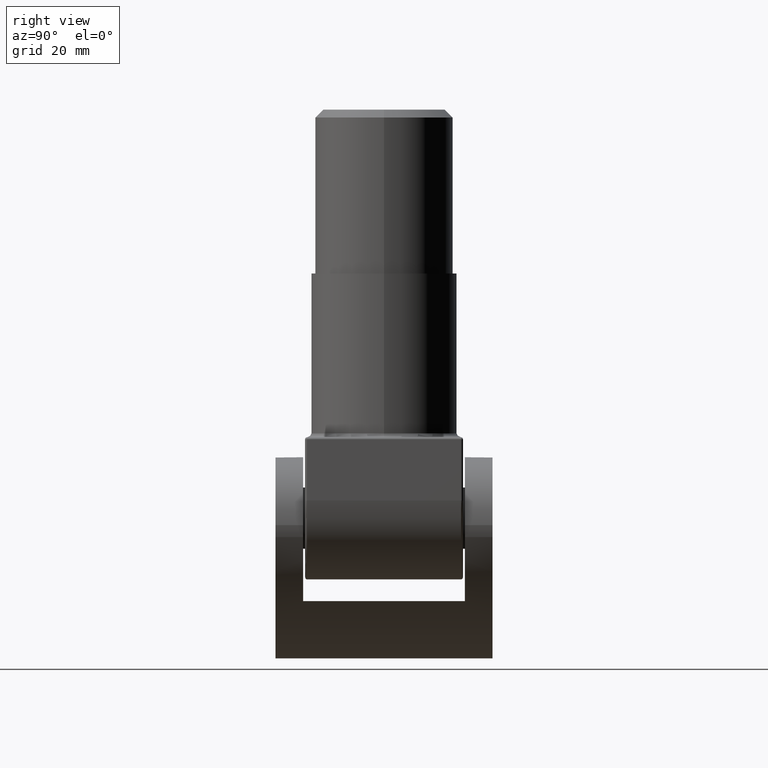
[diagram: clean part render]
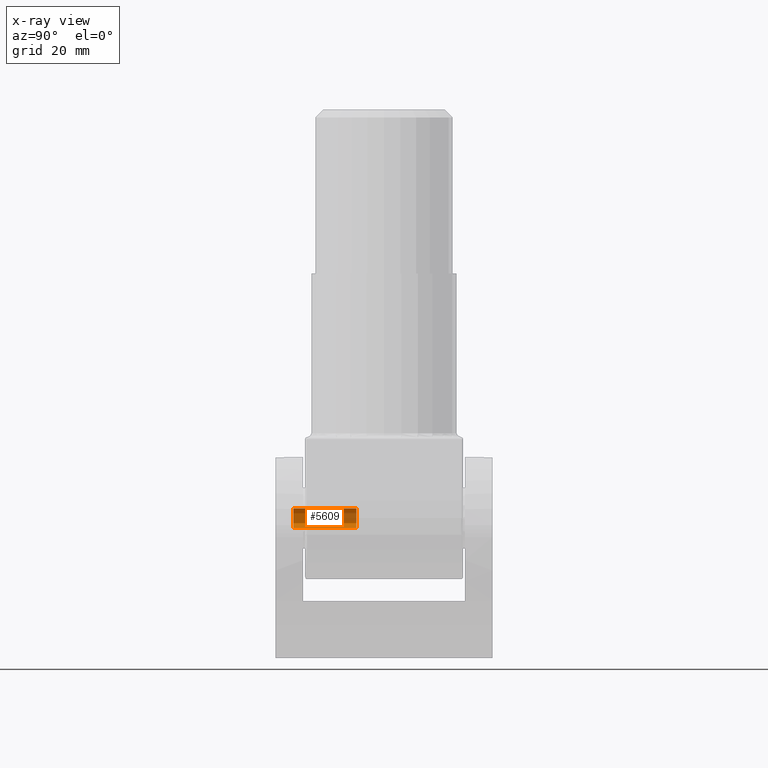
[diagram: x-ray — body ghosted, one internal face saturated and labeled with its STEP entity id]
A machine part, right view, then the same camera in x-ray: the body is ghosted and one INTERNAL B-rep face — a face not visible from any outside direction — is saturated and labeled: STEP entity #5609.
In plain terms, the highlighted cylindrical surface (edge-blend (fillet) strip) has radius 2.5 mm, axis along (-0, -1, -0).
Its self-contained STEP definition (entity closure, byte-faithful):
#1821 = DIRECTION ( 'NONE',  ( -0.000000000000000000, -1.000000000000000000, -0.000000000000000000 ) ) ;
#1981 = CARTESIAN_POINT ( 'NONE',  ( 0.000000000000000000, -23.50000000000000000, -20.50000000000000000 ) ) ;
#2619 = VECTOR ( 'NONE', #8037, 1000.000000000000000 ) ;
#3309 = CARTESIAN_POINT ( 'NONE',  ( 0.000000000000000000, -6.999999999999999112, -22.99999999999999645 ) ) ;
#4277 = EDGE_CURVE ( 'NONE', #15009, #8758, #8124, .T. ) ;
#4480 = ORIENTED_EDGE ( 'NONE', *, *, #6191, .F. ) ;
#5609 = ADVANCED_FACE ( 'NONE', ( #12703 ), #24428, .F. ) ;
#5675 = EDGE_CURVE ( 'NONE', #8758, #12751, #17288, .T. ) ;
#6191 = EDGE_CURVE ( 'NONE', #15633, #12751, #8990, .T. ) ;
#6937 = CARTESIAN_POINT ( 'NONE',  ( 0.000000000000000000, -22.99999999999996447, -22.99999999999999289 ) ) ;
#7141 = VECTOR ( 'NONE', #7323, 1000.000000000000000 ) ;
#7266 = ORIENTED_EDGE ( 'NONE', *, *, #4277, .T. ) ;
#7323 = DIRECTION ( 'NONE',  ( -0.000000000000000000, -1.000000000000000000, -0.000000000000000000 ) ) ;
#8037 = DIRECTION ( 'NONE',  ( -0.000000000000000000, -1.000000000000000000, -0.000000000000000000 ) ) ;
#8124 = LINE ( 'NONE', #14257, #2619 ) ;
#8758 = VERTEX_POINT ( 'NONE', #17371 ) ;
#8875 = DIRECTION ( 'NONE',  ( 0.000000000000000000, 0.000000000000000000, -1.000000000000000000 ) ) ;
#8881 = AXIS2_PLACEMENT_3D ( 'NONE', #13037, #18790, #16995 ) ;
#8990 = LINE ( 'NONE', #23141, #7141 ) ;
#12703 = FACE_OUTER_BOUND ( 'NONE', #23869, .T. ) ;
#12751 = VERTEX_POINT ( 'NONE', #6937 ) ;
#13037 = CARTESIAN_POINT ( 'NONE',  ( 0.000000000000000000, -22.99999999999996447, -20.50000000000000000 ) ) ;
#13294 = CIRCLE ( 'NONE', #16704, 2.499999999999995115 ) ;
#14257 = CARTESIAN_POINT ( 'NONE',  ( 3.061616997868373773E-16, -23.50000000000000000, -18.00000000000001066 ) ) ;
#14579 = ORIENTED_EDGE ( 'NONE', *, *, #15440, .F. ) ;
#15009 = VERTEX_POINT ( 'NONE', #22406 ) ;
#15440 = EDGE_CURVE ( 'NONE', #15009, #15633, #13294, .T. ) ;
#15633 = VERTEX_POINT ( 'NONE', #3309 ) ;
#16628 = CARTESIAN_POINT ( 'NONE',  ( 0.000000000000000000, -6.999999999999999112, -20.50000000000000000 ) ) ;
#16704 = AXIS2_PLACEMENT_3D ( 'NONE', #16628, #20560, #8875 ) ;
#16995 = DIRECTION ( 'NONE',  ( 0.000000000000000000, 0.000000000000000000, 1.000000000000000000 ) ) ;
#17259 = AXIS2_PLACEMENT_3D ( 'NONE', #1981, #1821, #25305 ) ;
#17288 = CIRCLE ( 'NONE', #8881, 2.499999999999992006 ) ;
#17371 = CARTESIAN_POINT ( 'NONE',  ( 3.061616997868375253E-16, -22.99999999999996447, -18.00000000000001066 ) ) ;
#18790 = DIRECTION ( 'NONE',  ( 0.000000000000000000, -1.000000000000000000, 0.000000000000000000 ) ) ;
#20560 = DIRECTION ( 'NONE',  ( -0.000000000000000000, -1.000000000000000000, -0.000000000000000000 ) ) ;
#21966 = ORIENTED_EDGE ( 'NONE', *, *, #5675, .T. ) ;
#22406 = CARTESIAN_POINT ( 'NONE',  ( 3.061616997868377718E-16, -6.999999999999999112, -18.00000000000000711 ) ) ;
#23141 = CARTESIAN_POINT ( 'NONE',  ( 0.000000000000000000, -23.50000000000000000, -22.99999999999999289 ) ) ;
#23869 = EDGE_LOOP ( 'NONE', ( #14579, #7266, #21966, #4480 ) ) ;
#24428 = CYLINDRICAL_SURFACE ( 'NONE', #17259, 2.499999999999992006 ) ;
#25305 = DIRECTION ( 'NONE',  ( 0.000000000000000000, 0.000000000000000000, -1.000000000000000000 ) ) ;